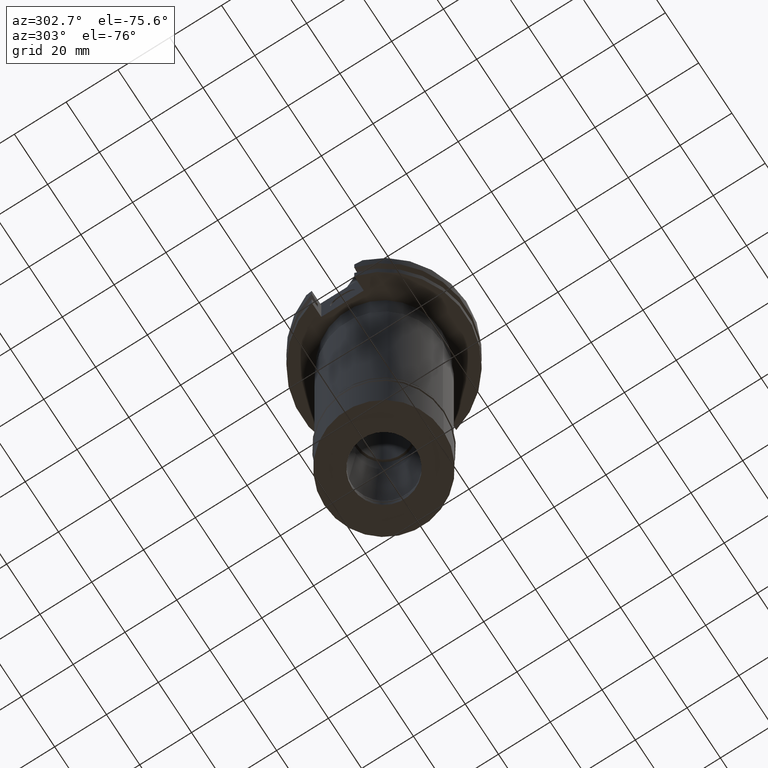
[diagram: clean part render]
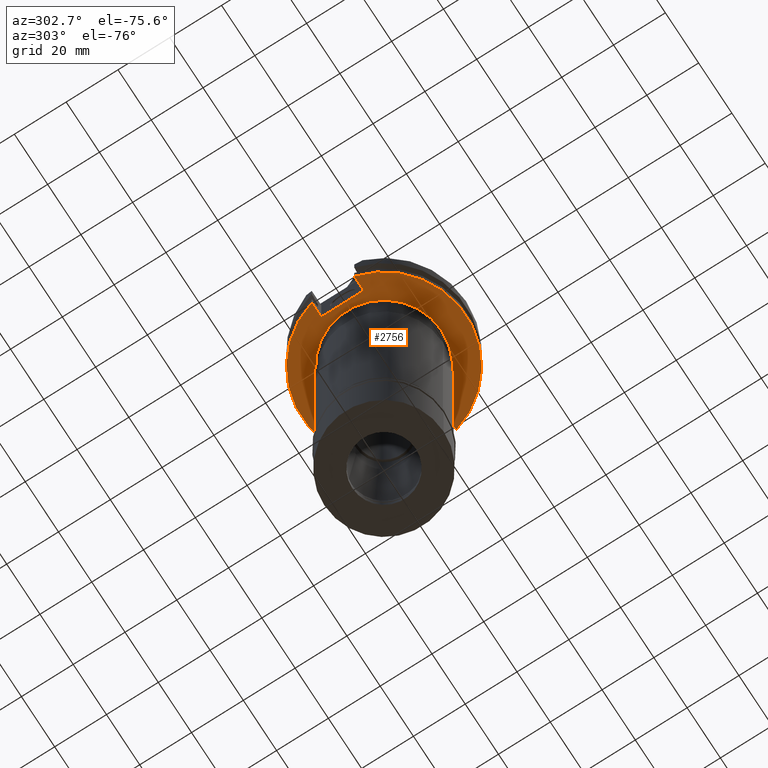
[diagram: same view with one face highlighted and labeled with its STEP entity id]
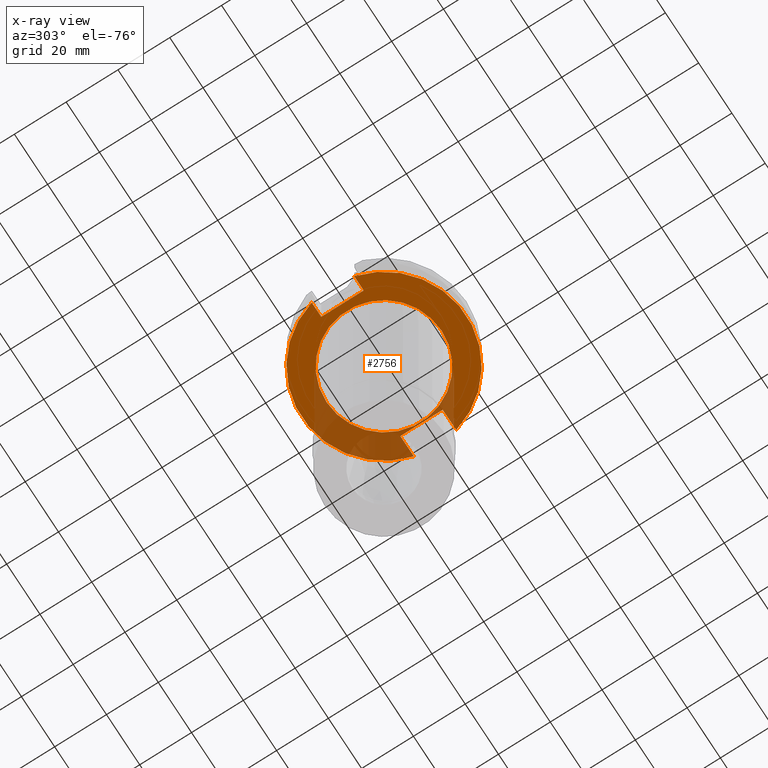
[diagram: x-ray of the same camera — body ghosted, the highlighted face saturated]
A machine part, auxiliary view. The second image highlights one B-rep face of the part: STEP entity #2756.
The next image is the same camera in x-ray: the body ghosted, the highlighted face saturated — about 28% of this face is hidden behind the body in this view.
In plain terms, the highlighted planar face has unit normal (0, 0, -1).
Its self-contained STEP definition (entity closure, byte-faithful):
#10 = DIRECTION ( 'NONE',  ( 0.0000000000000000000, 0.0000000000000000000, 1.000000000000000000 ) ) ;
#27 = DIRECTION ( 'NONE',  ( 0.0000000000000000000, -1.000000000000000000, 0.0000000000000000000 ) ) ;
#100 = AXIS2_PLACEMENT_3D ( 'NONE', #2010, #10, #785 ) ;
#108 = DIRECTION ( 'NONE',  ( 0.0000000000000000000, 1.000000000000000000, 0.0000000000000000000 ) ) ;
#117 = EDGE_CURVE ( 'NONE', #2713, #645, #2808, .T. ) ;
#119 = DIRECTION ( 'NONE',  ( 0.0000000000000000000, -1.000000000000000000, 0.0000000000000000000 ) ) ;
#173 = DIRECTION ( 'NONE',  ( -1.000000000000000000, 0.0000000000000000000, 0.0000000000000000000 ) ) ;
#195 = ORIENTED_EDGE ( 'NONE', *, *, #2202, .F. ) ;
#214 = CARTESIAN_POINT ( 'NONE',  ( 30.67550162588999640, 8.189999999999999503, -19.05000000000000071 ) ) ;
#229 = EDGE_LOOP ( 'NONE', ( #1657, #999, #2032, #2018, #470, #807, #2954, #735 ) ) ;
#265 = CARTESIAN_POINT ( 'NONE',  ( -24.98000000000000043, -8.189999999999999503, -19.05000000000000071 ) ) ;
#297 = DIRECTION ( 'NONE',  ( 0.0000000000000000000, 0.0000000000000000000, 1.000000000000000000 ) ) ;
#307 = EDGE_LOOP ( 'NONE', ( #195, #933 ) ) ;
#327 = CARTESIAN_POINT ( 'NONE',  ( 22.57000000000000028, -8.189999999999999503, -19.05000000000000071 ) ) ;
#363 = CARTESIAN_POINT ( 'NONE',  ( -30.67550162588999640, -8.189999999999999503, -19.05000000000000071 ) ) ;
#415 = CARTESIAN_POINT ( 'NONE',  ( 22.57000000000000028, -8.189999999999999503, -19.05000000000000071 ) ) ;
#437 = EDGE_CURVE ( 'NONE', #2273, #1230, #531, .T. ) ;
#470 = ORIENTED_EDGE ( 'NONE', *, *, #2797, .T. ) ;
#511 = CARTESIAN_POINT ( 'NONE',  ( 22.57000000000000028, 8.189999999999999503, -19.05000000000000071 ) ) ;
#520 = DIRECTION ( 'NONE',  ( 0.0000000000000000000, 0.0000000000000000000, -1.000000000000000000 ) ) ;
#531 = LINE ( 'NONE', #511, #1155 ) ;
#534 = EDGE_CURVE ( 'NONE', #1230, #1507, #2058, .T. ) ;
#562 = DIRECTION ( 'NONE',  ( 1.000000000000000000, 0.0000000000000000000, 0.0000000000000000000 ) ) ;
#645 = VERTEX_POINT ( 'NONE', #2787 ) ;
#676 = VERTEX_POINT ( 'NONE', #214 ) ;
#735 = ORIENTED_EDGE ( 'NONE', *, *, #437, .T. ) ;
#743 = DIRECTION ( 'NONE',  ( 0.0000000000000000000, -1.000000000000000000, 0.0000000000000000000 ) ) ;
#765 = EDGE_CURVE ( 'NONE', #1320, #2065, #2422, .T. ) ;
#785 = DIRECTION ( 'NONE',  ( 0.0000000000000000000, 1.000000000000000000, 0.0000000000000000000 ) ) ;
#803 = LINE ( 'NONE', #2792, #825 ) ;
#807 = ORIENTED_EDGE ( 'NONE', *, *, #1992, .F. ) ;
#825 = VECTOR ( 'NONE', #562, 1000.000000000000000 ) ;
#887 = CARTESIAN_POINT ( 'NONE',  ( -24.98000000000000043, 8.189999999999999503, -19.05000000000000071 ) ) ;
#933 = ORIENTED_EDGE ( 'NONE', *, *, #117, .F. ) ;
#961 = LINE ( 'NONE', #2004, #1993 ) ;
#965 = CARTESIAN_POINT ( 'NONE',  ( 30.67550162588999640, -8.189999999999999503, -19.05000000000000071 ) ) ;
#999 = ORIENTED_EDGE ( 'NONE', *, *, #1387, .F. ) ;
#1155 = VECTOR ( 'NONE', #743, 1000.000000000000000 ) ;
#1182 = VECTOR ( 'NONE', #1719, 1000.000000000000000 ) ;
#1206 = CIRCLE ( 'NONE', #1887, 22.22500000000000142 ) ;
#1230 = VERTEX_POINT ( 'NONE', #415 ) ;
#1299 = CARTESIAN_POINT ( 'NONE',  ( -24.98000000000000043, 8.189999999999999503, -19.05000000000000071 ) ) ;
#1320 = VERTEX_POINT ( 'NONE', #1299 ) ;
#1387 = EDGE_CURVE ( 'NONE', #1616, #1507, #1666, .T. ) ;
#1435 = DIRECTION ( 'NONE',  ( 0.0000000000000000000, 0.0000000000000000000, -1.000000000000000000 ) ) ;
#1507 = VERTEX_POINT ( 'NONE', #965 ) ;
#1546 = VERTEX_POINT ( 'NONE', #2580 ) ;
#1616 = VERTEX_POINT ( 'NONE', #363 ) ;
#1657 = ORIENTED_EDGE ( 'NONE', *, *, #534, .T. ) ;
#1666 = CIRCLE ( 'NONE', #2137, 31.75000000000000000 ) ;
#1719 = DIRECTION ( 'NONE',  ( 0.0000000000000000000, -1.000000000000000000, 0.0000000000000000000 ) ) ;
#1742 = VECTOR ( 'NONE', #2606, 1000.000000000000000 ) ;
#1848 = CARTESIAN_POINT ( 'NONE',  ( 0.0000000000000000000, 2.188841840285999578E-14, -19.05000000000000071 ) ) ;
#1870 = FACE_OUTER_BOUND ( 'NONE', #229, .T. ) ;
#1887 = AXIS2_PLACEMENT_3D ( 'NONE', #1848, #3087, #108 ) ;
#1992 = EDGE_CURVE ( 'NONE', #676, #1546, #3007, .T. ) ;
#1993 = VECTOR ( 'NONE', #2727, 1000.000000000000000 ) ;
#2004 = CARTESIAN_POINT ( 'NONE',  ( -24.98000000000000043, 8.189999999999999503, -19.05000000000000071 ) ) ;
#2010 = CARTESIAN_POINT ( 'NONE',  ( 0.0000000000000000000, 2.188841840285999578E-14, -19.05000000000000071 ) ) ;
#2018 = ORIENTED_EDGE ( 'NONE', *, *, #765, .F. ) ;
#2032 = ORIENTED_EDGE ( 'NONE', *, *, #2775, .F. ) ;
#2058 = LINE ( 'NONE', #327, #1742 ) ;
#2065 = VERTEX_POINT ( 'NONE', #265 ) ;
#2137 = AXIS2_PLACEMENT_3D ( 'NONE', #2531, #297, #3036 ) ;
#2151 = AXIS2_PLACEMENT_3D ( 'NONE', #2679, #1435, #119 ) ;
#2167 = CARTESIAN_POINT ( 'NONE',  ( -24.98000000000000043, -8.189999999999999503, -19.05000000000000071 ) ) ;
#2202 = EDGE_CURVE ( 'NONE', #645, #2713, #1206, .T. ) ;
#2273 = VERTEX_POINT ( 'NONE', #2607 ) ;
#2355 = AXIS2_PLACEMENT_3D ( 'NONE', #2741, #520, #27 ) ;
#2377 = LINE ( 'NONE', #2167, #2661 ) ;
#2422 = LINE ( 'NONE', #887, #1182 ) ;
#2531 = CARTESIAN_POINT ( 'NONE',  ( 0.0000000000000000000, 2.188841840285999578E-14, -19.05000000000000071 ) ) ;
#2580 = CARTESIAN_POINT ( 'NONE',  ( -30.67550162588999640, 8.189999999999999503, -19.05000000000000071 ) ) ;
#2588 = EDGE_CURVE ( 'NONE', #2273, #676, #803, .T. ) ;
#2606 = DIRECTION ( 'NONE',  ( 1.000000000000000000, 0.0000000000000000000, 0.0000000000000000000 ) ) ;
#2607 = CARTESIAN_POINT ( 'NONE',  ( 22.57000000000000028, 8.189999999999999503, -19.05000000000000071 ) ) ;
#2647 = CARTESIAN_POINT ( 'NONE',  ( 0.0000000000000000000, -22.22500000000000142, -19.05000000000000071 ) ) ;
#2661 = VECTOR ( 'NONE', #173, 1000.000000000000000 ) ;
#2679 = CARTESIAN_POINT ( 'NONE',  ( 0.0000000000000000000, 0.0000000000000000000, -19.05000000000000071 ) ) ;
#2713 = VERTEX_POINT ( 'NONE', #2647 ) ;
#2727 = DIRECTION ( 'NONE',  ( -1.000000000000000000, 0.0000000000000000000, 0.0000000000000000000 ) ) ;
#2741 = CARTESIAN_POINT ( 'NONE',  ( 0.0000000000000000000, 2.188841840285999578E-14, -19.05000000000000071 ) ) ;
#2756 = ADVANCED_FACE ( 'NONE', ( #1870, #2915 ), #2882, .T. ) ;
#2775 = EDGE_CURVE ( 'NONE', #2065, #1616, #2377, .T. ) ;
#2787 = CARTESIAN_POINT ( 'NONE',  ( 0.0000000000000000000, 22.22500000000000142, -19.05000000000000071 ) ) ;
#2792 = CARTESIAN_POINT ( 'NONE',  ( 22.57000000000000028, 8.189999999999999503, -19.05000000000000071 ) ) ;
#2797 = EDGE_CURVE ( 'NONE', #1320, #1546, #961, .T. ) ;
#2808 = CIRCLE ( 'NONE', #2355, 22.22500000000000142 ) ;
#2882 = PLANE ( 'NONE',  #2151 ) ;
#2915 = FACE_BOUND ( 'NONE', #307, .T. ) ;
#2954 = ORIENTED_EDGE ( 'NONE', *, *, #2588, .F. ) ;
#3007 = CIRCLE ( 'NONE', #100, 31.75000000000000000 ) ;
#3036 = DIRECTION ( 'NONE',  ( 0.0000000000000000000, -1.000000000000000000, 0.0000000000000000000 ) ) ;
#3087 = DIRECTION ( 'NONE',  ( 0.0000000000000000000, 0.0000000000000000000, -1.000000000000000000 ) ) ;